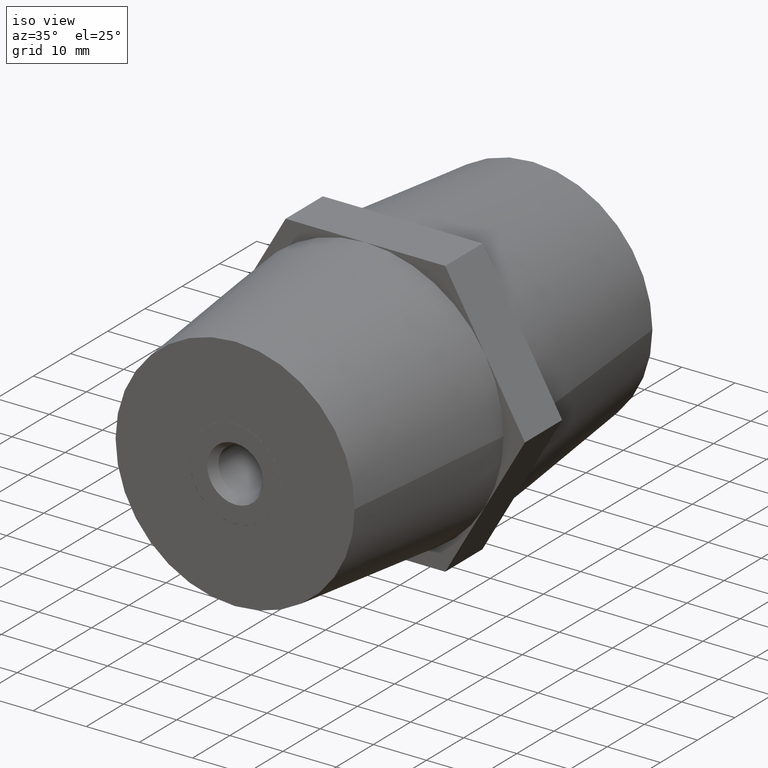
[diagram: clean part render]
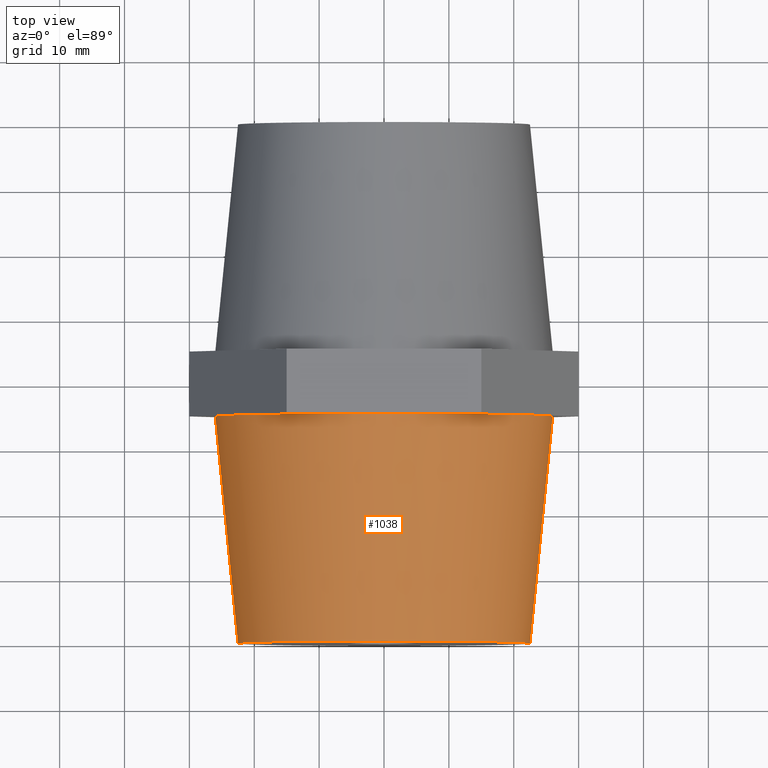
[diagram: tour spotlight — one face highlighted and labeled with its STEP entity id]
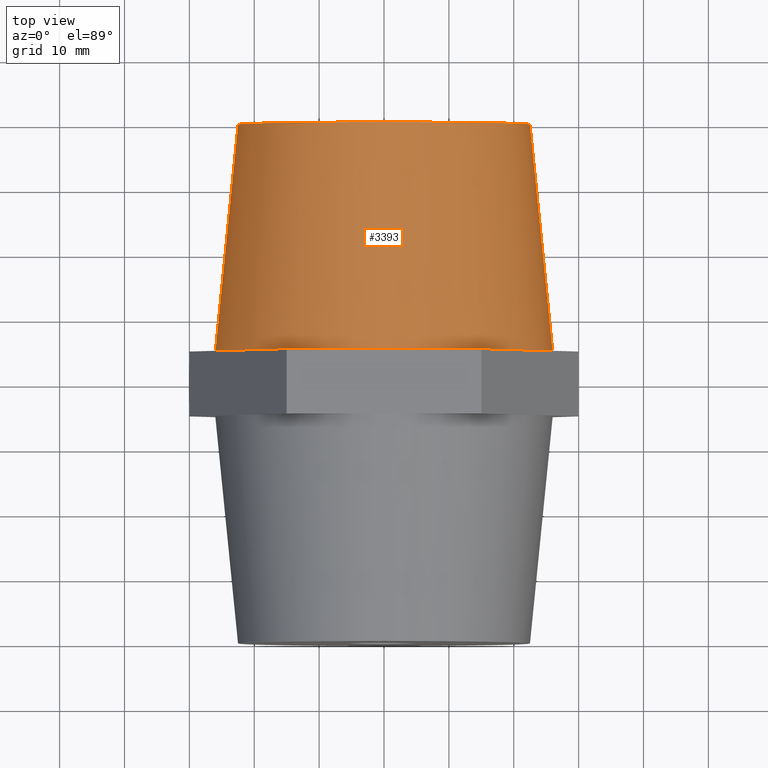
[diagram: tour spotlight — one face highlighted and labeled with its STEP entity id]
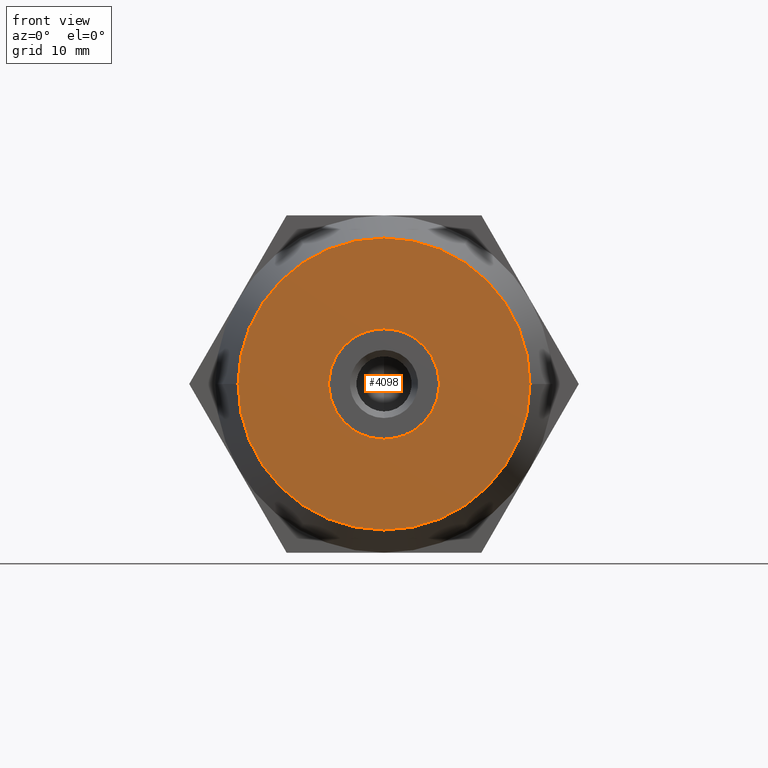
[diagram: tour spotlight — one face highlighted and labeled with its STEP entity id]
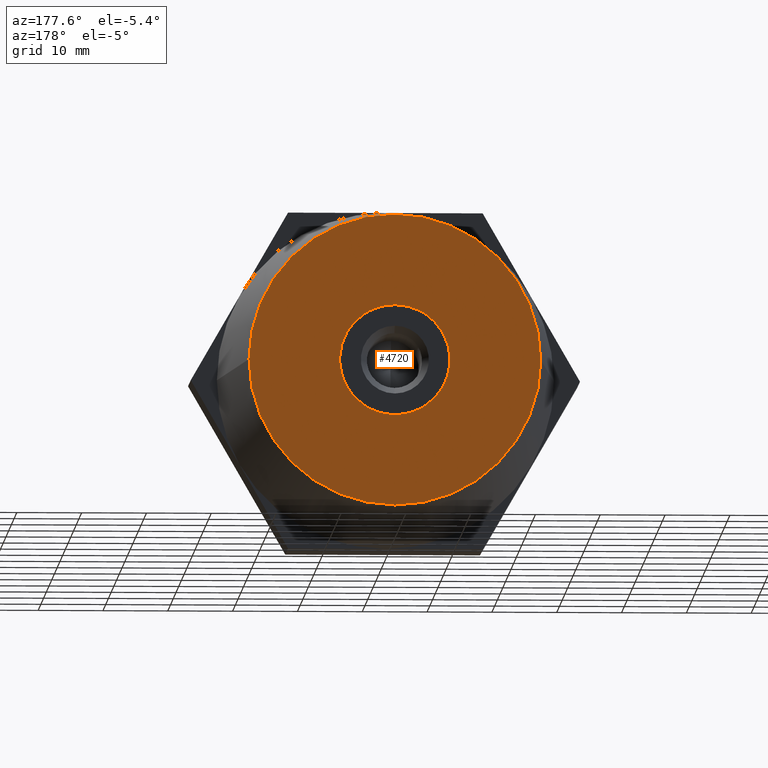
[diagram: tour spotlight — one face highlighted and labeled with its STEP entity id]
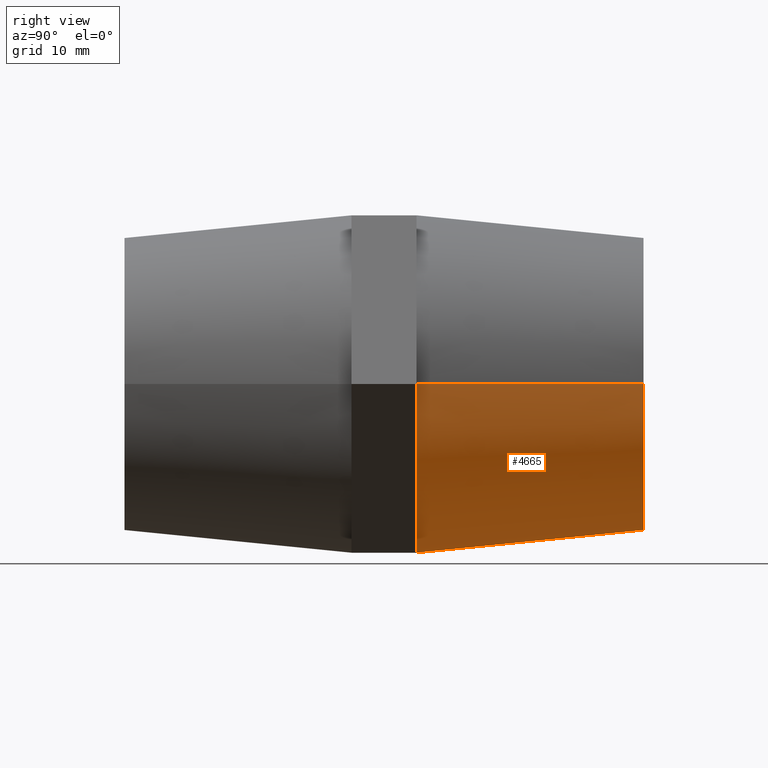
[diagram: tour spotlight — one face highlighted and labeled with its STEP entity id]
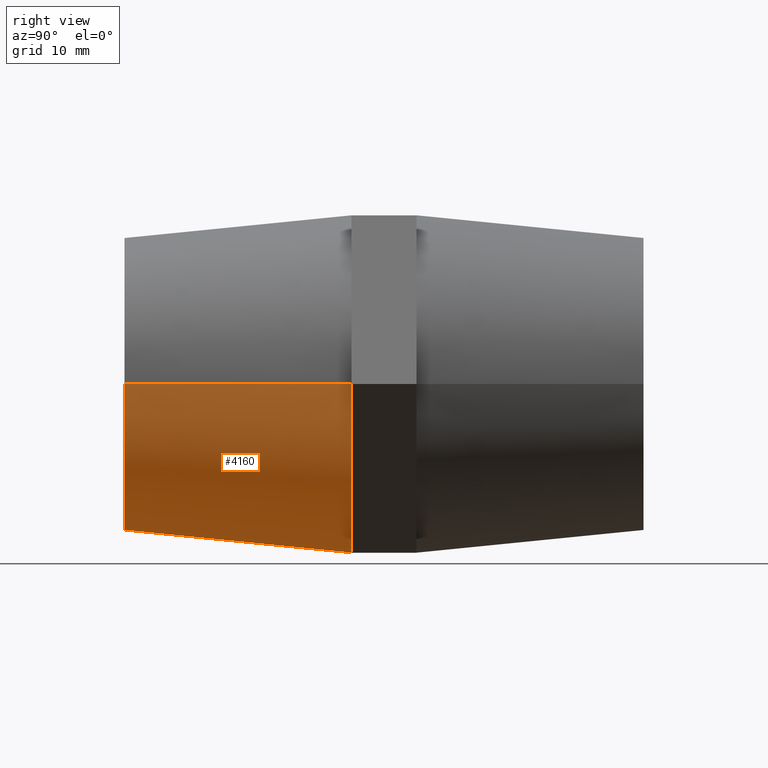
[diagram: tour spotlight — one face highlighted and labeled with its STEP entity id]
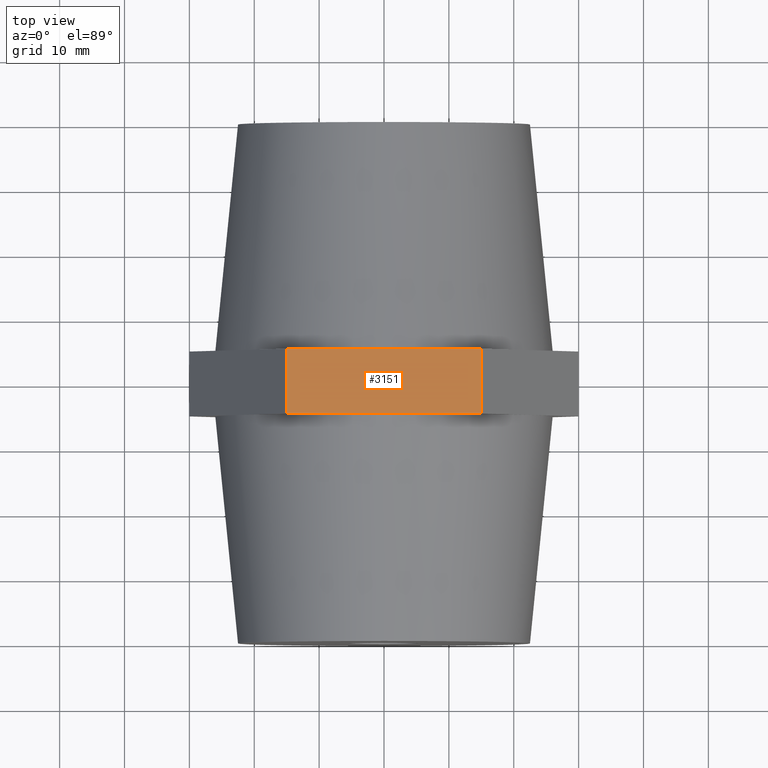
[diagram: tour spotlight — one face highlighted and labeled with its STEP entity id]
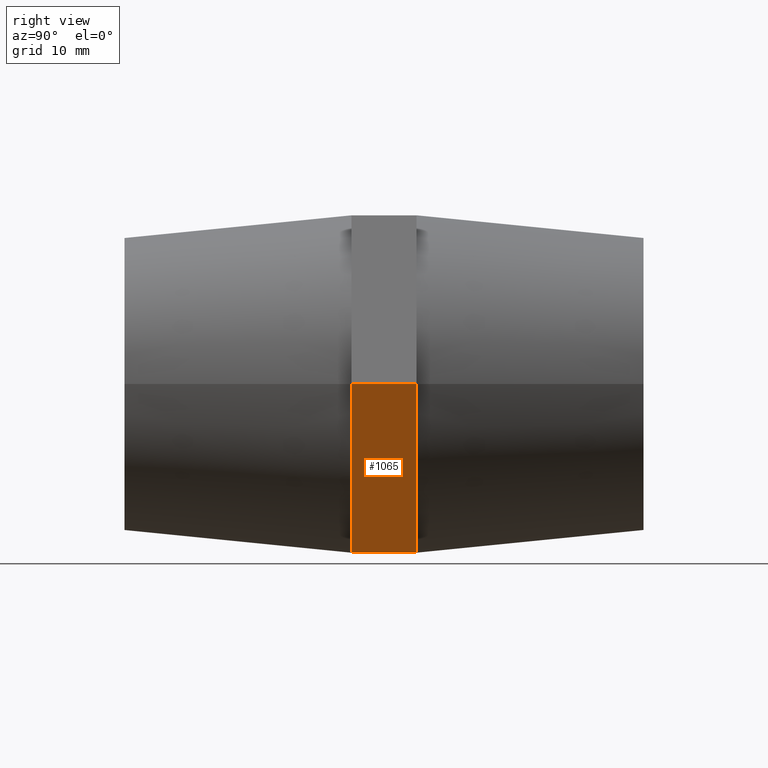
[diagram: tour spotlight — one face highlighted and labeled with its STEP entity id]
A machine part: a face-by-face anatomy tour. The part has 238 B-rep faces; the first image is the clean iso view, then the 8 largest visible faces are spotlighted one at a time (largest first), each with its STEP entity span.

Face 1 — top view, entity #1038. In plain terms, the highlighted conical surface has half-angle 5.711 deg.
Definition (entity closure, byte-faithful):
#4 = AXIS2_PLACEMENT_3D ( 'NONE', #2362, #3571, #741 ) ;
#179 = EDGE_CURVE ( 'NONE', #4708, #3184, #4245, .T. ) ;
#256 = DIRECTION ( 'NONE',  ( 0.0000000000000000000, 0.0000000000000000000, 1.000000000000000000 ) ) ;
#356 = VERTEX_POINT ( 'NONE', #1478 ) ;
#444 = DIRECTION ( 'NONE',  ( -1.224646799147352000E-016, 1.000000000000000000, 0.0000000000000000000 ) ) ;
#481 = ORIENTED_EDGE ( 'NONE', *, *, #719, .T. ) ;
#627 = EDGE_CURVE ( 'NONE', #356, #1499, #1599, .T. ) ;
#667 = CARTESIAN_POINT ( 'NONE',  ( 2.506281398688769900E-015, -5.000000000000000000, 26.00000000000000000 ) ) ;
#712 = DIRECTION ( 'NONE',  ( -1.000000000000000000, -1.334402673828313100E-016, 0.0000000000000000000 ) ) ;
#718 = CARTESIAN_POINT ( 'NONE',  ( -22.51666049839540000, -5.000000000000000000, 13.00000000000000000 ) ) ;
#719 = EDGE_CURVE ( 'NONE', #4363, #3294, #3632, .T. ) ;
#741 = DIRECTION ( 'NONE',  ( 0.0000000000000000000, 0.0000000000000000000, 1.000000000000000000 ) ) ;
#815 = EDGE_CURVE ( 'NONE', #3294, #3184, #4251, .T. ) ;
#816 = VECTOR ( 'NONE', #4163, 1000.000000000000200 ) ;
#840 = CARTESIAN_POINT ( 'NONE',  ( -22.49999999999998900, -40.00000000000000000, 0.0000000000000000000 ) ) ;
#874 = CONICAL_SURFACE ( 'NONE', #1248, 26.00000000000000000, 0.09966865249116252400 ) ;
#1038 = ADVANCED_FACE ( 'NONE', ( #1920 ), #874, .T. ) ;
#1110 = CARTESIAN_POINT ( 'NONE',  ( 5.510910596163089600E-015, -5.000000000000000000, 0.0000000000000000000 ) ) ;
#1248 = AXIS2_PLACEMENT_3D ( 'NONE', #1110, #2321, #712 ) ;
#1257 = CARTESIAN_POINT ( 'NONE',  ( 26.00000000000000700, -4.999999999999996400, 3.184081677783118200E-015 ) ) ;
#1290 = CARTESIAN_POINT ( 'NONE',  ( 9.797174393178830800E-015, -40.00000000000000000, 0.0000000000000000000 ) ) ;
#1293 = EDGE_CURVE ( 'NONE', #4363, #356, #5127, .T. ) ;
#1410 = CIRCLE ( 'NONE', #4, 26.00000000000000000 ) ;
#1411 = CARTESIAN_POINT ( 'NONE',  ( 5.510910596163089600E-015, -5.000000000000000000, 0.0000000000000000000 ) ) ;
#1478 = CARTESIAN_POINT ( 'NONE',  ( -25.99999999999999300, -5.000000000000000000, 0.0000000000000000000 ) ) ;
#1499 = VERTEX_POINT ( 'NONE', #718 ) ;
#1553 = CARTESIAN_POINT ( 'NONE',  ( 22.51666049839544900, -5.000000000000000000, 13.00000000000000000 ) ) ;
#1599 = CIRCLE ( 'NONE', #2530, 26.00000000000000000 ) ;
#1732 = ORIENTED_EDGE ( 'NONE', *, *, #627, .F. ) ;
#1830 = CARTESIAN_POINT ( 'NONE',  ( 22.50000000000001100, -40.00000000000000000, 2.969768487932331700E-015 ) ) ;
#1845 = CARTESIAN_POINT ( 'NONE',  ( -25.99999999999999300, -5.000000000000003600, 0.0000000000000000000 ) ) ;
#1920 = FACE_OUTER_BOUND ( 'NONE', #2488, .T. ) ;
#2018 = ORIENTED_EDGE ( 'NONE', *, *, #3360, .F. ) ;
#2228 = DIRECTION ( 'NONE',  ( -0.09950371902099952600, 0.9950371902099890400, 0.0000000000000000000 ) ) ;
#2321 = DIRECTION ( 'NONE',  ( -1.224646799147352000E-016, 1.000000000000000000, 0.0000000000000000000 ) ) ;
#2362 = CARTESIAN_POINT ( 'NONE',  ( 5.510910596163089600E-015, -5.000000000000000000, 3.184081677783139900E-016 ) ) ;
#2373 = DIRECTION ( 'NONE',  ( 0.0000000000000000000, 1.000000000000000000, 0.0000000000000000000 ) ) ;
#2488 = EDGE_LOOP ( 'NONE', ( #481, #3117, #3424, #3702, #2018, #1732, #4532 ) ) ;
#2490 = DIRECTION ( 'NONE',  ( -1.000000000000000000, 0.0000000000000000000, 0.0000000000000000000 ) ) ;
#2530 = AXIS2_PLACEMENT_3D ( 'NONE', #4732, #2373, #4758 ) ;
#2665 = DIRECTION ( 'NONE',  ( 0.0000000000000000000, 1.000000000000000000, 0.0000000000000000000 ) ) ;
#2744 = CIRCLE ( 'NONE', #2860, 26.00000000000000000 ) ;
#2828 = AXIS2_PLACEMENT_3D ( 'NONE', #3422, #2665, #256 ) ;
#2860 = AXIS2_PLACEMENT_3D ( 'NONE', #1411, #4176, #4960 ) ;
#3117 = ORIENTED_EDGE ( 'NONE', *, *, #815, .T. ) ;
#3184 = VERTEX_POINT ( 'NONE', #4943 ) ;
#3294 = VERTEX_POINT ( 'NONE', #1830 ) ;
#3360 = EDGE_CURVE ( 'NONE', #1499, #3568, #2744, .T. ) ;
#3422 = CARTESIAN_POINT ( 'NONE',  ( 5.510910596163089600E-015, -5.000000000000000000, 3.184081677783139900E-016 ) ) ;
#3424 = ORIENTED_EDGE ( 'NONE', *, *, #179, .F. ) ;
#3568 = VERTEX_POINT ( 'NONE', #667 ) ;
#3571 = DIRECTION ( 'NONE',  ( 0.0000000000000000000, 1.000000000000000000, 0.0000000000000000000 ) ) ;
#3632 = CIRCLE ( 'NONE', #3918, 22.50000000000000000 ) ;
#3687 = EDGE_CURVE ( 'NONE', #3568, #4708, #1410, .T. ) ;
#3702 = ORIENTED_EDGE ( 'NONE', *, *, #3687, .F. ) ;
#3918 = AXIS2_PLACEMENT_3D ( 'NONE', #1290, #444, #2490 ) ;
#3952 = VECTOR ( 'NONE', #2228, 1000.000000000000200 ) ;
#4163 = DIRECTION ( 'NONE',  ( 0.09950371902099927600, 0.9950371902099890400, 1.218569110023245200E-017 ) ) ;
#4176 = DIRECTION ( 'NONE',  ( -1.224646799147352000E-016, 1.000000000000000000, 0.0000000000000000000 ) ) ;
#4245 = CIRCLE ( 'NONE', #2828, 26.00000000000000000 ) ;
#4251 = LINE ( 'NONE', #1257, #816 ) ;
#4363 = VERTEX_POINT ( 'NONE', #840 ) ;
#4532 = ORIENTED_EDGE ( 'NONE', *, *, #1293, .F. ) ;
#4708 = VERTEX_POINT ( 'NONE', #1553 ) ;
#4732 = CARTESIAN_POINT ( 'NONE',  ( 5.510910596163089600E-015, -5.000000000000000000, 3.184081677783139900E-016 ) ) ;
#4758 = DIRECTION ( 'NONE',  ( 0.0000000000000000000, 0.0000000000000000000, 1.000000000000000000 ) ) ;
#4943 = CARTESIAN_POINT ( 'NONE',  ( 26.00000000000000700, -5.000000000000000000, 3.184081677783118200E-015 ) ) ;
#4960 = DIRECTION ( 'NONE',  ( -1.000000000000000000, -1.334402673828313100E-016, 0.0000000000000000000 ) ) ;
#5127 = LINE ( 'NONE', #1845, #3952 ) ;

Face 2 — top view, entity #3393. In plain terms, the highlighted conical surface has half-angle 5.711 deg.
Definition (entity closure, byte-faithful):
#192 = CIRCLE ( 'NONE', #1371, 22.50000000000000000 ) ;
#376 = ORIENTED_EDGE ( 'NONE', *, *, #4683, .T. ) ;
#431 = AXIS2_PLACEMENT_3D ( 'NONE', #4536, #596, #2574 ) ;
#494 = DIRECTION ( 'NONE',  ( -1.224646799147352000E-016, 1.000000000000000000, 0.0000000000000000000 ) ) ;
#589 = FACE_OUTER_BOUND ( 'NONE', #1758, .T. ) ;
#596 = DIRECTION ( 'NONE',  ( 1.224646799147352000E-016, -1.000000000000000000, 0.0000000000000000000 ) ) ;
#893 = CARTESIAN_POINT ( 'NONE',  ( 4.286263797015734900E-015, 5.000000000000000000, 0.0000000000000000000 ) ) ;
#944 = DIRECTION ( 'NONE',  ( -1.000000000000000000, -1.334402673828313100E-016, 0.0000000000000000000 ) ) ;
#977 = VERTEX_POINT ( 'NONE', #3849 ) ;
#1111 = DIRECTION ( 'NONE',  ( -1.000000000000000000, -1.334402673828313100E-016, 0.0000000000000000000 ) ) ;
#1317 = ORIENTED_EDGE ( 'NONE', *, *, #2197, .T. ) ;
#1351 = CARTESIAN_POINT ( 'NONE',  ( 26.00000000000002100, 5.000000000000000000, 0.0000000000000000000 ) ) ;
#1371 = AXIS2_PLACEMENT_3D ( 'NONE', #4227, #4368, #5072 ) ;
#1475 = DIRECTION ( 'NONE',  ( 0.09950371902099942900, -0.9950371902099890400, 0.0000000000000000000 ) ) ;
#1516 = CARTESIAN_POINT ( 'NONE',  ( 4.286263797015734900E-015, 5.000000000000000000, 0.0000000000000000000 ) ) ;
#1565 = EDGE_CURVE ( 'NONE', #977, #3859, #192, .T. ) ;
#1598 = AXIS2_PLACEMENT_3D ( 'NONE', #3887, #4671, #2322 ) ;
#1758 = EDGE_LOOP ( 'NONE', ( #4705, #4872, #1317, #2861, #376, #4451, #2034 ) ) ;
#1766 = VECTOR ( 'NONE', #1475, 1000.000000000000200 ) ;
#1968 = DIRECTION ( 'NONE',  ( -0.09950371902099919300, -0.9950371902099890400, 1.218569110023244100E-017 ) ) ;
#2034 = ORIENTED_EDGE ( 'NONE', *, *, #2095, .F. ) ;
#2095 = EDGE_CURVE ( 'NONE', #3859, #3464, #2950, .T. ) ;
#2197 = EDGE_CURVE ( 'NONE', #3556, #3009, #5115, .T. ) ;
#2270 = AXIS2_PLACEMENT_3D ( 'NONE', #893, #2958, #944 ) ;
#2322 = DIRECTION ( 'NONE',  ( -1.000000000000000000, -1.334402673828313100E-016, 0.0000000000000000000 ) ) ;
#2475 = VECTOR ( 'NONE', #1968, 1000.000000000000200 ) ;
#2536 = CARTESIAN_POINT ( 'NONE',  ( 4.286263797015734900E-015, 5.000000000000000000, 0.0000000000000000000 ) ) ;
#2574 = DIRECTION ( 'NONE',  ( 1.000000000000000000, 0.0000000000000000000, 0.0000000000000000000 ) ) ;
#2797 = CIRCLE ( 'NONE', #2270, 26.00000000000000000 ) ;
#2809 = CARTESIAN_POINT ( 'NONE',  ( -22.51666049839540000, 5.000000000000000000, 13.00000000000000000 ) ) ;
#2861 = ORIENTED_EDGE ( 'NONE', *, *, #4724, .T. ) ;
#2880 = AXIS2_PLACEMENT_3D ( 'NONE', #2536, #494, #4866 ) ;
#2950 = LINE ( 'NONE', #4288, #1766 ) ;
#2958 = DIRECTION ( 'NONE',  ( -1.224646799147352000E-016, 1.000000000000000000, 0.0000000000000000000 ) ) ;
#2988 = VERTEX_POINT ( 'NONE', #5146 ) ;
#3009 = VERTEX_POINT ( 'NONE', #2809 ) ;
#3393 = ADVANCED_FACE ( 'NONE', ( #589 ), #3457, .T. ) ;
#3447 = AXIS2_PLACEMENT_3D ( 'NONE', #1516, #4308, #1111 ) ;
#3457 = CONICAL_SURFACE ( 'NONE', #431, 22.50000000000000000, 0.09966865249116244100 ) ;
#3464 = VERTEX_POINT ( 'NONE', #1351 ) ;
#3556 = VERTEX_POINT ( 'NONE', #4718 ) ;
#3796 = EDGE_CURVE ( 'NONE', #977, #3556, #4810, .T. ) ;
#3849 = CARTESIAN_POINT ( 'NONE',  ( -22.50000000000000000, 40.00000000000000000, 2.969768487932332100E-015 ) ) ;
#3859 = VERTEX_POINT ( 'NONE', #4440 ) ;
#3887 = CARTESIAN_POINT ( 'NONE',  ( 4.286263797015734900E-015, 5.000000000000000000, 0.0000000000000000000 ) ) ;
#3934 = CARTESIAN_POINT ( 'NONE',  ( -22.50000000000000000, 40.00000000000000000, 2.755455298081544800E-015 ) ) ;
#3941 = CARTESIAN_POINT ( 'NONE',  ( -3.004629197474319600E-015, 5.000000000000000000, 26.00000000000000000 ) ) ;
#3957 = CIRCLE ( 'NONE', #1598, 26.00000000000000000 ) ;
#3966 = EDGE_CURVE ( 'NONE', #2988, #3464, #2797, .T. ) ;
#4227 = CARTESIAN_POINT ( 'NONE',  ( -3.374459510989179900E-031, 40.00000000000000000, 0.0000000000000000000 ) ) ;
#4288 = CARTESIAN_POINT ( 'NONE',  ( 22.50000000000000000, 40.00000000000000000, 0.0000000000000000000 ) ) ;
#4308 = DIRECTION ( 'NONE',  ( -1.224646799147352000E-016, 1.000000000000000000, 0.0000000000000000000 ) ) ;
#4368 = DIRECTION ( 'NONE',  ( -1.224646799147352000E-016, 1.000000000000000000, 0.0000000000000000000 ) ) ;
#4440 = CARTESIAN_POINT ( 'NONE',  ( 22.50000000000000000, 40.00000000000000000, 0.0000000000000000000 ) ) ;
#4451 = ORIENTED_EDGE ( 'NONE', *, *, #3966, .T. ) ;
#4494 = CIRCLE ( 'NONE', #3447, 26.00000000000000000 ) ;
#4536 = CARTESIAN_POINT ( 'NONE',  ( -3.374459510989179900E-031, 40.00000000000000000, 0.0000000000000000000 ) ) ;
#4671 = DIRECTION ( 'NONE',  ( -1.224646799147352000E-016, 1.000000000000000000, 0.0000000000000000000 ) ) ;
#4674 = VERTEX_POINT ( 'NONE', #3941 ) ;
#4683 = EDGE_CURVE ( 'NONE', #4674, #2988, #4494, .T. ) ;
#4705 = ORIENTED_EDGE ( 'NONE', *, *, #1565, .F. ) ;
#4718 = CARTESIAN_POINT ( 'NONE',  ( -26.00000000000001100, 5.000000000000000000, 3.184081677783120200E-015 ) ) ;
#4724 = EDGE_CURVE ( 'NONE', #3009, #4674, #3957, .T. ) ;
#4810 = LINE ( 'NONE', #3934, #2475 ) ;
#4866 = DIRECTION ( 'NONE',  ( -1.000000000000000000, -1.334402673828313100E-016, 0.0000000000000000000 ) ) ;
#4872 = ORIENTED_EDGE ( 'NONE', *, *, #3796, .T. ) ;
#5072 = DIRECTION ( 'NONE',  ( -1.000000000000000000, 0.0000000000000000000, 0.0000000000000000000 ) ) ;
#5115 = CIRCLE ( 'NONE', #2880, 26.00000000000000000 ) ;
#5146 = CARTESIAN_POINT ( 'NONE',  ( 22.51666049839540000, 5.000000000000000000, 13.00000000000000000 ) ) ;

Face 3 — front view, entity #4098. In plain terms, the highlighted planar face has unit normal (0, -1, 0).
Definition (entity closure, byte-faithful):
#13 = DIRECTION ( 'NONE',  ( 1.000000000000000000, 0.0000000000000000000, -1.776356839400250500E-015 ) ) ;
#50 = CARTESIAN_POINT ( 'NONE',  ( -12.62500000000000000, -40.00000000000000000, -17.10400172474265200 ) ) ;
#198 = CARTESIAN_POINT ( 'NONE',  ( -8.500000000000000000, -40.00000000000000000, -0.4124318125462395100 ) ) ;
#201 = FACE_OUTER_BOUND ( 'NONE', #2760, .T. ) ;
#202 = DIRECTION ( 'NONE',  ( -1.224646799147352000E-016, 1.000000000000000000, -0.0000000000000000000 ) ) ;
#209 = LINE ( 'NONE', #357, #4327 ) ;
#210 = EDGE_CURVE ( 'NONE', #3218, #1994, #2787, .T. ) ;
#216 = CARTESIAN_POINT ( 'NONE',  ( -22.50000000000000000, -40.00000000000000000, 0.0000000000000000000 ) ) ;
#221 = VERTEX_POINT ( 'NONE', #2750 ) ;
#268 = DIRECTION ( 'NONE',  ( -1.000000000000000000, 0.0000000000000000000, 0.0000000000000000000 ) ) ;
#286 = EDGE_CURVE ( 'NONE', #3294, #4363, #3562, .T. ) ;
#297 = AXIS2_PLACEMENT_3D ( 'NONE', #3047, #631, #1408 ) ;
#317 = DIRECTION ( 'NONE',  ( -1.224646799147352000E-016, 1.000000000000000000, -0.0000000000000000000 ) ) ;
#336 = FACE_BOUND ( 'NONE', #2461, .T. ) ;
#339 = CARTESIAN_POINT ( 'NONE',  ( 8.500000000000000000, -40.00000000000000000, 0.4124318125463410400 ) ) ;
#357 = CARTESIAN_POINT ( 'NONE',  ( -12.62500000000000000, -40.00000000000000000, 17.10400172474265200 ) ) ;
#365 = ORIENTED_EDGE ( 'NONE', *, *, #2943, .T. ) ;
#444 = DIRECTION ( 'NONE',  ( -1.224646799147352000E-016, 1.000000000000000000, 0.0000000000000000000 ) ) ;
#459 = AXIS2_PLACEMENT_3D ( 'NONE', #4215, #2320, #727 ) ;
#504 = ORIENTED_EDGE ( 'NONE', *, *, #1398, .T. ) ;
#595 = LINE ( 'NONE', #2041, #4946 ) ;
#631 = DIRECTION ( 'NONE',  ( -1.224646799147352000E-016, 1.000000000000000000, -0.0000000000000000000 ) ) ;
#719 = EDGE_CURVE ( 'NONE', #4363, #3294, #3632, .T. ) ;
#720 = DIRECTION ( 'NONE',  ( 1.000000000000000000, 0.0000000000000000000, 0.0000000000000000000 ) ) ;
#721 = ORIENTED_EDGE ( 'NONE', *, *, #286, .F. ) ;
#727 = DIRECTION ( 'NONE',  ( 1.000000000000000000, 0.0000000000000000000, 1.776356839400250500E-015 ) ) ;
#751 = ORIENTED_EDGE ( 'NONE', *, *, #210, .T. ) ;
#757 = EDGE_CURVE ( 'NONE', #2198, #3218, #768, .T. ) ;
#768 = LINE ( 'NONE', #4405, #1012 ) ;
#826 = CARTESIAN_POINT ( 'NONE',  ( 4.607176426994010800, -40.00000000000000000, 7.155000025894540100 ) ) ;
#840 = CARTESIAN_POINT ( 'NONE',  ( -22.49999999999998900, -40.00000000000000000, 0.0000000000000000000 ) ) ;
#935 = CARTESIAN_POINT ( 'NONE',  ( 1.042174426074395900E-015, -40.00000000000000000, 0.0000000000000000000 ) ) ;
#937 = CARTESIAN_POINT ( 'NONE',  ( -4.607176426993900600, -40.00000000000000000, -7.155000025894610300 ) ) ;
#1012 = VECTOR ( 'NONE', #4043, 1000.000000000000000 ) ;
#1042 = PLANE ( 'NONE',  #4604 ) ;
#1056 = DIRECTION ( 'NONE',  ( 1.000000000000000000, 1.224646799147352000E-016, 0.0000000000000000000 ) ) ;
#1165 = DIRECTION ( 'NONE',  ( 1.000000000000000000, 0.0000000000000000000, 0.0000000000000000000 ) ) ;
#1288 = ORIENTED_EDGE ( 'NONE', *, *, #719, .F. ) ;
#1290 = CARTESIAN_POINT ( 'NONE',  ( 9.797174393178830800E-015, -40.00000000000000000, 0.0000000000000000000 ) ) ;
#1398 = EDGE_CURVE ( 'NONE', #3282, #4760, #1707, .T. ) ;
#1404 = DIRECTION ( 'NONE',  ( 1.224646799147352000E-016, -1.000000000000000000, 0.0000000000000000000 ) ) ;
#1408 = DIRECTION ( 'NONE',  ( 1.000000000000000000, 0.0000000000000000000, 1.776356839400250500E-015 ) ) ;
#1426 = ORIENTED_EDGE ( 'NONE', *, *, #3226, .T. ) ;
#1449 = ORIENTED_EDGE ( 'NONE', *, *, #1580, .T. ) ;
#1462 = LINE ( 'NONE', #4748, #4680 ) ;
#1474 = VECTOR ( 'NONE', #2112, 1000.000000000000000 ) ;
#1568 = ORIENTED_EDGE ( 'NONE', *, *, #757, .T. ) ;
#1580 = EDGE_CURVE ( 'NONE', #4760, #4702, #1462, .T. ) ;
#1613 = ORIENTED_EDGE ( 'NONE', *, *, #2345, .T. ) ;
#1619 = ORIENTED_EDGE ( 'NONE', *, *, #4387, .T. ) ;
#1707 = CIRCLE ( 'NONE', #297, 8.509999999999999800 ) ;
#1830 = CARTESIAN_POINT ( 'NONE',  ( 22.50000000000001100, -40.00000000000000000, 2.969768487932331700E-015 ) ) ;
#1948 = CARTESIAN_POINT ( 'NONE',  ( 1.042174426074395900E-015, -40.00000000000000000, 0.0000000000000000000 ) ) ;
#1977 = CARTESIAN_POINT ( 'NONE',  ( -3.892823573006010100, -40.00000000000000000, 7.567431838440890100 ) ) ;
#1994 = VERTEX_POINT ( 'NONE', #198 ) ;
#2041 = CARTESIAN_POINT ( 'NONE',  ( 8.500000000000000000, -40.00000000000000000, 1.095805942608280000E-014 ) ) ;
#2054 = AXIS2_PLACEMENT_3D ( 'NONE', #3959, #2417, #13 ) ;
#2072 = EDGE_CURVE ( 'NONE', #4702, #4443, #2457, .T. ) ;
#2112 = DIRECTION ( 'NONE',  ( -0.8660254037844387100, -1.060575238724905700E-016, -0.4999999999999998900 ) ) ;
#2198 = VERTEX_POINT ( 'NONE', #4937 ) ;
#2201 = ORIENTED_EDGE ( 'NONE', *, *, #4980, .T. ) ;
#2221 = CARTESIAN_POINT ( 'NONE',  ( 1.042174426074395900E-015, -40.00000000000000000, 0.0000000000000000000 ) ) ;
#2277 = CARTESIAN_POINT ( 'NONE',  ( 9.797174393178830800E-015, -40.00000000000000000, 0.0000000000000000000 ) ) ;
#2320 = DIRECTION ( 'NONE',  ( -1.224646799147352000E-016, 1.000000000000000000, -0.0000000000000000000 ) ) ;
#2345 = EDGE_CURVE ( 'NONE', #3714, #2825, #595, .T. ) ;
#2417 = DIRECTION ( 'NONE',  ( -1.224646799147352000E-016, 1.000000000000000000, -0.0000000000000000000 ) ) ;
#2434 = CARTESIAN_POINT ( 'NONE',  ( 1.042174426074395900E-015, -40.00000000000000000, 0.0000000000000000000 ) ) ;
#2457 = CIRCLE ( 'NONE', #459, 8.509999999999999800 ) ;
#2461 = EDGE_LOOP ( 'NONE', ( #4337, #365, #1613, #2201, #1619, #2484, #1568, #751, #1426, #504, #1449, #3650, #2644 ) ) ;
#2484 = ORIENTED_EDGE ( 'NONE', *, *, #4055, .T. ) ;
#2490 = DIRECTION ( 'NONE',  ( -1.000000000000000000, 0.0000000000000000000, 0.0000000000000000000 ) ) ;
#2561 = DIRECTION ( 'NONE',  ( 0.0000000000000000000, 0.0000000000000000000, 1.000000000000000000 ) ) ;
#2644 = ORIENTED_EDGE ( 'NONE', *, *, #4815, .T. ) ;
#2678 = LINE ( 'NONE', #3295, #2913 ) ;
#2717 = DIRECTION ( 'NONE',  ( 0.8660254037844387100, 1.060575238724905700E-016, 0.4999999999999998900 ) ) ;
#2750 = CARTESIAN_POINT ( 'NONE',  ( 3.892823573006069600, -40.00000000000000000, -7.567431838440869600 ) ) ;
#2760 = EDGE_LOOP ( 'NONE', ( #1288, #721 ) ) ;
#2787 = CIRCLE ( 'NONE', #4759, 8.509999999999999800 ) ;
#2825 = VERTEX_POINT ( 'NONE', #3484 ) ;
#2913 = VECTOR ( 'NONE', #2561, 1000.000000000000000 ) ;
#2927 = AXIS2_PLACEMENT_3D ( 'NONE', #935, #3348, #4505 ) ;
#2943 = EDGE_CURVE ( 'NONE', #3970, #3714, #5014, .T. ) ;
#3026 = DIRECTION ( 'NONE',  ( 1.000000000000000000, 0.0000000000000000000, 0.0000000000000000000 ) ) ;
#3047 = CARTESIAN_POINT ( 'NONE',  ( 1.042174426074395900E-015, -40.00000000000000000, 0.0000000000000000000 ) ) ;
#3090 = AXIS2_PLACEMENT_3D ( 'NONE', #2277, #5081, #268 ) ;
#3098 = AXIS2_PLACEMENT_3D ( 'NONE', #2434, #4401, #1165 ) ;
#3167 = DIRECTION ( 'NONE',  ( 0.8660254037844387100, 1.060575238724905700E-016, -0.4999999999999998900 ) ) ;
#3174 = CARTESIAN_POINT ( 'NONE',  ( -4.607176426993989400, -40.00000000000000000, 7.155000025894559600 ) ) ;
#3218 = VERTEX_POINT ( 'NONE', #937 ) ;
#3226 = EDGE_CURVE ( 'NONE', #1994, #3282, #2678, .T. ) ;
#3261 = LINE ( 'NONE', #50, #1474 ) ;
#3282 = VERTEX_POINT ( 'NONE', #4161 ) ;
#3294 = VERTEX_POINT ( 'NONE', #1830 ) ;
#3295 = CARTESIAN_POINT ( 'NONE',  ( -8.500000000000000000, -40.00000000000000000, 0.0000000000000000000 ) ) ;
#3348 = DIRECTION ( 'NONE',  ( -1.224646799147352000E-016, 1.000000000000000000, -0.0000000000000000000 ) ) ;
#3484 = CARTESIAN_POINT ( 'NONE',  ( 8.500000000000000000, -40.00000000000000000, -0.4124318125463780100 ) ) ;
#3519 = CIRCLE ( 'NONE', #2927, 8.509999999999999800 ) ;
#3561 = CARTESIAN_POINT ( 'NONE',  ( 3.892823573005975000, -40.00000000000000000, 7.567431838440909600 ) ) ;
#3562 = CIRCLE ( 'NONE', #3090, 22.50000000000000000 ) ;
#3572 = CIRCLE ( 'NONE', #3098, 8.509999999999999800 ) ;
#3605 = EDGE_CURVE ( 'NONE', #4827, #3970, #209, .T. ) ;
#3632 = CIRCLE ( 'NONE', #3918, 22.50000000000000000 ) ;
#3650 = ORIENTED_EDGE ( 'NONE', *, *, #2072, .T. ) ;
#3714 = VERTEX_POINT ( 'NONE', #339 ) ;
#3918 = AXIS2_PLACEMENT_3D ( 'NONE', #1290, #444, #2490 ) ;
#3959 = CARTESIAN_POINT ( 'NONE',  ( 1.042174426074395900E-015, -40.00000000000000000, 0.0000000000000000000 ) ) ;
#3970 = VERTEX_POINT ( 'NONE', #826 ) ;
#4000 = CARTESIAN_POINT ( 'NONE',  ( -3.851859888774471700E-031, -40.00000000000000000, 8.509999999999999800 ) ) ;
#4043 = DIRECTION ( 'NONE',  ( -0.8660254037844387100, -1.060575238724905700E-016, 0.4999999999999998900 ) ) ;
#4055 = EDGE_CURVE ( 'NONE', #221, #2198, #4684, .T. ) ;
#4098 = ADVANCED_FACE ( 'NONE', ( #201, #336 ), #1042, .T. ) ;
#4161 = CARTESIAN_POINT ( 'NONE',  ( -8.500000000000000000, -40.00000000000000000, 0.4124318125462395100 ) ) ;
#4215 = CARTESIAN_POINT ( 'NONE',  ( 1.042174426074395900E-015, -40.00000000000000000, 0.0000000000000000000 ) ) ;
#4327 = VECTOR ( 'NONE', #3167, 1000.000000000000000 ) ;
#4337 = ORIENTED_EDGE ( 'NONE', *, *, #3605, .T. ) ;
#4363 = VERTEX_POINT ( 'NONE', #840 ) ;
#4387 = EDGE_CURVE ( 'NONE', #4652, #221, #3261, .T. ) ;
#4401 = DIRECTION ( 'NONE',  ( -1.224646799147352000E-016, 1.000000000000000000, -0.0000000000000000000 ) ) ;
#4405 = CARTESIAN_POINT ( 'NONE',  ( -21.12500000000000000, -40.00000000000000000, 2.381569860407195100 ) ) ;
#4443 = VERTEX_POINT ( 'NONE', #4000 ) ;
#4505 = DIRECTION ( 'NONE',  ( 1.000000000000000000, 0.0000000000000000000, 0.0000000000000000000 ) ) ;
#4604 = AXIS2_PLACEMENT_3D ( 'NONE', #216, #1404, #1056 ) ;
#4652 = VERTEX_POINT ( 'NONE', #5131 ) ;
#4680 = VECTOR ( 'NONE', #2717, 1000.000000000000000 ) ;
#4684 = CIRCLE ( 'NONE', #4891, 8.509999999999999800 ) ;
#4702 = VERTEX_POINT ( 'NONE', #1977 ) ;
#4748 = CARTESIAN_POINT ( 'NONE',  ( -21.12500000000000000, -40.00000000000000000, -2.381569860407209700 ) ) ;
#4759 = AXIS2_PLACEMENT_3D ( 'NONE', #1948, #317, #720 ) ;
#4760 = VERTEX_POINT ( 'NONE', #3174 ) ;
#4788 = DIRECTION ( 'NONE',  ( 3.534857879381550100E-016, 4.328952387425414700E-032, -1.000000000000000000 ) ) ;
#4815 = EDGE_CURVE ( 'NONE', #4443, #4827, #3572, .T. ) ;
#4827 = VERTEX_POINT ( 'NONE', #3561 ) ;
#4891 = AXIS2_PLACEMENT_3D ( 'NONE', #2221, #202, #3026 ) ;
#4937 = CARTESIAN_POINT ( 'NONE',  ( -3.892823573006094900, -40.00000000000000000, -7.567431838440849200 ) ) ;
#4946 = VECTOR ( 'NONE', #4788, 1000.000000000000000 ) ;
#4980 = EDGE_CURVE ( 'NONE', #2825, #4652, #3519, .T. ) ;
#5014 = CIRCLE ( 'NONE', #2054, 8.509999999999999800 ) ;
#5081 = DIRECTION ( 'NONE',  ( -1.224646799147352000E-016, 1.000000000000000000, 0.0000000000000000000 ) ) ;
#5131 = CARTESIAN_POINT ( 'NONE',  ( 4.607176426993929900, -40.00000000000000000, -7.155000025894589800 ) ) ;

Face 4 — auxiliary view, entity #4720. In plain terms, the highlighted planar face has unit normal (-0, 1, 0).
Definition (entity closure, byte-faithful):
#135 = DIRECTION ( 'NONE',  ( 1.224646799147352000E-016, -1.000000000000000000, -0.0000000000000000000 ) ) ;
#178 = DIRECTION ( 'NONE',  ( -1.000000000000000000, 0.0000000000000000000, -1.776356839400250500E-015 ) ) ;
#192 = CIRCLE ( 'NONE', #1371, 22.50000000000000000 ) ;
#227 = AXIS2_PLACEMENT_3D ( 'NONE', #1479, #2341, #1872 ) ;
#288 = DIRECTION ( 'NONE',  ( -1.000000000000000000, 0.0000000000000000000, -8.881784197001252300E-016 ) ) ;
#307 = VERTEX_POINT ( 'NONE', #3449 ) ;
#318 = EDGE_CURVE ( 'NONE', #307, #907, #1595, .T. ) ;
#372 = CARTESIAN_POINT ( 'NONE',  ( 8.500000000000000000, 40.00000000000000000, -0.4124318125461605100 ) ) ;
#405 = CIRCLE ( 'NONE', #638, 8.509999999999999800 ) ;
#423 = EDGE_CURVE ( 'NONE', #3340, #3919, #2350, .T. ) ;
#433 = DIRECTION ( 'NONE',  ( -1.000000000000000000, 0.0000000000000000000, 0.0000000000000000000 ) ) ;
#464 = CARTESIAN_POINT ( 'NONE',  ( -1.042174426074395900E-015, 40.00000000000000000, 0.0000000000000000000 ) ) ;
#553 = CARTESIAN_POINT ( 'NONE',  ( -1.042174426074395900E-015, 40.00000000000000000, 0.0000000000000000000 ) ) ;
#614 = VERTEX_POINT ( 'NONE', #3551 ) ;
#638 = AXIS2_PLACEMENT_3D ( 'NONE', #2651, #3037, #178 ) ;
#651 = VECTOR ( 'NONE', #2211, 1000.000000000000000 ) ;
#710 = VECTOR ( 'NONE', #3621, 1000.000000000000000 ) ;
#731 = ORIENTED_EDGE ( 'NONE', *, *, #2083, .T. ) ;
#742 = EDGE_CURVE ( 'NONE', #907, #2939, #1539, .T. ) ;
#748 = DIRECTION ( 'NONE',  ( -1.224646799147352000E-016, 1.000000000000000000, 0.0000000000000000000 ) ) ;
#792 = ORIENTED_EDGE ( 'NONE', *, *, #1255, .T. ) ;
#794 = AXIS2_PLACEMENT_3D ( 'NONE', #1674, #2817, #433 ) ;
#825 = LINE ( 'NONE', #2377, #2671 ) ;
#830 = AXIS2_PLACEMENT_3D ( 'NONE', #1519, #3502, #1912 ) ;
#872 = CARTESIAN_POINT ( 'NONE',  ( -12.62500000000000000, 40.00000000000000000, 17.10400172474265200 ) ) ;
#907 = VERTEX_POINT ( 'NONE', #4907 ) ;
#977 = VERTEX_POINT ( 'NONE', #3849 ) ;
#1029 = CARTESIAN_POINT ( 'NONE',  ( 4.607176426993840200, 40.00000000000000000, 7.155000025894650200 ) ) ;
#1090 = CIRCLE ( 'NONE', #227, 8.509999999999999800 ) ;
#1100 = VERTEX_POINT ( 'NONE', #3496 ) ;
#1190 = ORIENTED_EDGE ( 'NONE', *, *, #2904, .T. ) ;
#1201 = VECTOR ( 'NONE', #2646, 1000.000000000000000 ) ;
#1211 = AXIS2_PLACEMENT_3D ( 'NONE', #3516, #748, #5063 ) ;
#1250 = ORIENTED_EDGE ( 'NONE', *, *, #3289, .T. ) ;
#1255 = EDGE_CURVE ( 'NONE', #2939, #3747, #3445, .T. ) ;
#1269 = AXIS2_PLACEMENT_3D ( 'NONE', #4634, #2685, #288 ) ;
#1323 = VECTOR ( 'NONE', #5145, 1000.000000000000000 ) ;
#1369 = ORIENTED_EDGE ( 'NONE', *, *, #742, .T. ) ;
#1371 = AXIS2_PLACEMENT_3D ( 'NONE', #4227, #4368, #5072 ) ;
#1387 = CIRCLE ( 'NONE', #1269, 8.509999999999999800 ) ;
#1479 = CARTESIAN_POINT ( 'NONE',  ( -1.042174426074395900E-015, 40.00000000000000000, 0.0000000000000000000 ) ) ;
#1519 = CARTESIAN_POINT ( 'NONE',  ( -1.042174426074395900E-015, 40.00000000000000000, 0.0000000000000000000 ) ) ;
#1538 = CARTESIAN_POINT ( 'NONE',  ( -21.12500000000000000, 40.00000000000000000, -2.381569860407205300 ) ) ;
#1539 = CIRCLE ( 'NONE', #3739, 8.509999999999999800 ) ;
#1557 = CIRCLE ( 'NONE', #794, 22.50000000000000000 ) ;
#1565 = EDGE_CURVE ( 'NONE', #977, #3859, #192, .T. ) ;
#1595 = LINE ( 'NONE', #1538, #2528 ) ;
#1674 = CARTESIAN_POINT ( 'NONE',  ( -3.374459510989179900E-031, 40.00000000000000000, 0.0000000000000000000 ) ) ;
#1703 = ORIENTED_EDGE ( 'NONE', *, *, #423, .T. ) ;
#1872 = DIRECTION ( 'NONE',  ( -1.000000000000000000, 0.0000000000000000000, 0.0000000000000000000 ) ) ;
#1912 = DIRECTION ( 'NONE',  ( -1.000000000000000000, 0.0000000000000000000, -8.881784197001252300E-016 ) ) ;
#2076 = DIRECTION ( 'NONE',  ( 1.224646799147352000E-016, -1.000000000000000000, -0.0000000000000000000 ) ) ;
#2081 = CARTESIAN_POINT ( 'NONE',  ( -3.892823573006110000, 40.00000000000000000, -7.567431838440839400 ) ) ;
#2083 = EDGE_CURVE ( 'NONE', #614, #3666, #1387, .T. ) ;
#2179 = CIRCLE ( 'NONE', #3999, 8.509999999999999800 ) ;
#2190 = CARTESIAN_POINT ( 'NONE',  ( -4.607176426993890000, 40.00000000000000000, -7.155000025894610300 ) ) ;
#2211 = DIRECTION ( 'NONE',  ( 0.8660254037844387100, 1.060575238724905700E-016, 0.4999999999999998900 ) ) ;
#2232 = FACE_OUTER_BOUND ( 'NONE', #3671, .T. ) ;
#2233 = CARTESIAN_POINT ( 'NONE',  ( -12.62500000000000000, 40.00000000000000000, -17.10400172474265200 ) ) ;
#2294 = EDGE_CURVE ( 'NONE', #3859, #977, #1557, .T. ) ;
#2341 = DIRECTION ( 'NONE',  ( 1.224646799147352000E-016, -1.000000000000000000, -0.0000000000000000000 ) ) ;
#2348 = CARTESIAN_POINT ( 'NONE',  ( -8.500000000000000000, 40.00000000000000000, -0.4124318125461904900 ) ) ;
#2350 = LINE ( 'NONE', #4656, #1323 ) ;
#2377 = CARTESIAN_POINT ( 'NONE',  ( 8.500000000000000000, 40.00000000000000000, -1.095805942608280000E-014 ) ) ;
#2415 = LINE ( 'NONE', #2233, #651 ) ;
#2450 = CARTESIAN_POINT ( 'NONE',  ( 3.851859888774471700E-031, 40.00000000000000000, -8.509999999999999800 ) ) ;
#2528 = VECTOR ( 'NONE', #4291, 1000.000000000000000 ) ;
#2572 = ORIENTED_EDGE ( 'NONE', *, *, #2294, .T. ) ;
#2646 = DIRECTION ( 'NONE',  ( 0.0000000000000000000, 0.0000000000000000000, -1.000000000000000000 ) ) ;
#2649 = EDGE_CURVE ( 'NONE', #3919, #5025, #2179, .T. ) ;
#2651 = CARTESIAN_POINT ( 'NONE',  ( -1.042174426074395900E-015, 40.00000000000000000, 0.0000000000000000000 ) ) ;
#2657 = ORIENTED_EDGE ( 'NONE', *, *, #2649, .T. ) ;
#2671 = VECTOR ( 'NONE', #4319, 1000.000000000000000 ) ;
#2685 = DIRECTION ( 'NONE',  ( 1.224646799147352000E-016, -1.000000000000000000, -0.0000000000000000000 ) ) ;
#2693 = CARTESIAN_POINT ( 'NONE',  ( 3.892823573006165100, 40.00000000000000000, 7.567431838440809200 ) ) ;
#2806 = VERTEX_POINT ( 'NONE', #2693 ) ;
#2817 = DIRECTION ( 'NONE',  ( -1.224646799147352000E-016, 1.000000000000000000, 0.0000000000000000000 ) ) ;
#2847 = LINE ( 'NONE', #872, #710 ) ;
#2866 = EDGE_CURVE ( 'NONE', #3747, #3340, #1090, .T. ) ;
#2904 = EDGE_CURVE ( 'NONE', #1100, #3537, #4013, .T. ) ;
#2939 = VERTEX_POINT ( 'NONE', #3189 ) ;
#2941 = DIRECTION ( 'NONE',  ( -1.000000000000000000, 0.0000000000000000000, 0.0000000000000000000 ) ) ;
#2990 = ORIENTED_EDGE ( 'NONE', *, *, #4183, .T. ) ;
#3037 = DIRECTION ( 'NONE',  ( 1.224646799147352000E-016, -1.000000000000000000, -0.0000000000000000000 ) ) ;
#3155 = CIRCLE ( 'NONE', #830, 8.509999999999999800 ) ;
#3189 = CARTESIAN_POINT ( 'NONE',  ( -8.500000000000000000, 40.00000000000000000, 0.4124318125461904900 ) ) ;
#3280 = EDGE_CURVE ( 'NONE', #2806, #307, #405, .T. ) ;
#3289 = EDGE_CURVE ( 'NONE', #4152, #614, #2415, .T. ) ;
#3340 = VERTEX_POINT ( 'NONE', #2190 ) ;
#3349 = EDGE_LOOP ( 'NONE', ( #1250, #731, #3585, #1190, #4283, #4939, #3712, #1369, #792, #4038, #1703, #2657, #2990 ) ) ;
#3432 = DIRECTION ( 'NONE',  ( 1.224646799147352000E-016, -1.000000000000000000, -0.0000000000000000000 ) ) ;
#3445 = LINE ( 'NONE', #4961, #1201 ) ;
#3449 = CARTESIAN_POINT ( 'NONE',  ( -3.892823573006134900, 40.00000000000000000, 7.567431838440819900 ) ) ;
#3496 = CARTESIAN_POINT ( 'NONE',  ( 8.500000000000000000, 40.00000000000000000, 0.4124318125461974800 ) ) ;
#3501 = DIRECTION ( 'NONE',  ( -1.000000000000000000, 0.0000000000000000000, -1.776356839400250500E-015 ) ) ;
#3502 = DIRECTION ( 'NONE',  ( 1.224646799147352000E-016, -1.000000000000000000, -0.0000000000000000000 ) ) ;
#3516 = CARTESIAN_POINT ( 'NONE',  ( -22.50000000000000000, 40.00000000000000000, 0.0000000000000000000 ) ) ;
#3537 = VERTEX_POINT ( 'NONE', #1029 ) ;
#3551 = CARTESIAN_POINT ( 'NONE',  ( 4.607176426993860700, 40.00000000000000000, -7.155000025894629800 ) ) ;
#3585 = ORIENTED_EDGE ( 'NONE', *, *, #3645, .T. ) ;
#3621 = DIRECTION ( 'NONE',  ( -0.8660254037844387100, -1.060575238724905700E-016, 0.4999999999999998900 ) ) ;
#3645 = EDGE_CURVE ( 'NONE', #3666, #1100, #825, .T. ) ;
#3666 = VERTEX_POINT ( 'NONE', #372 ) ;
#3671 = EDGE_LOOP ( 'NONE', ( #2572, #3915 ) ) ;
#3712 = ORIENTED_EDGE ( 'NONE', *, *, #318, .T. ) ;
#3739 = AXIS2_PLACEMENT_3D ( 'NONE', #464, #2076, #4436 ) ;
#3747 = VERTEX_POINT ( 'NONE', #2348 ) ;
#3849 = CARTESIAN_POINT ( 'NONE',  ( -22.50000000000000000, 40.00000000000000000, 2.969768487932332100E-015 ) ) ;
#3859 = VERTEX_POINT ( 'NONE', #4440 ) ;
#3915 = ORIENTED_EDGE ( 'NONE', *, *, #1565, .T. ) ;
#3919 = VERTEX_POINT ( 'NONE', #2081 ) ;
#3999 = AXIS2_PLACEMENT_3D ( 'NONE', #553, #135, #2941 ) ;
#4013 = CIRCLE ( 'NONE', #4522, 8.509999999999999800 ) ;
#4038 = ORIENTED_EDGE ( 'NONE', *, *, #2866, .T. ) ;
#4152 = VERTEX_POINT ( 'NONE', #4621 ) ;
#4183 = EDGE_CURVE ( 'NONE', #5025, #4152, #3155, .T. ) ;
#4227 = CARTESIAN_POINT ( 'NONE',  ( -3.374459510989179900E-031, 40.00000000000000000, 0.0000000000000000000 ) ) ;
#4283 = ORIENTED_EDGE ( 'NONE', *, *, #4318, .T. ) ;
#4291 = DIRECTION ( 'NONE',  ( -0.8660254037844387100, -1.060575238724905700E-016, -0.4999999999999998900 ) ) ;
#4318 = EDGE_CURVE ( 'NONE', #3537, #2806, #2847, .T. ) ;
#4319 = DIRECTION ( 'NONE',  ( 3.534857879381550100E-016, 4.328952387425414700E-032, 1.000000000000000000 ) ) ;
#4368 = DIRECTION ( 'NONE',  ( -1.224646799147352000E-016, 1.000000000000000000, 0.0000000000000000000 ) ) ;
#4436 = DIRECTION ( 'NONE',  ( -1.000000000000000000, 0.0000000000000000000, -8.881784197001252300E-016 ) ) ;
#4440 = CARTESIAN_POINT ( 'NONE',  ( 22.50000000000000000, 40.00000000000000000, 0.0000000000000000000 ) ) ;
#4522 = AXIS2_PLACEMENT_3D ( 'NONE', #5048, #3432, #3501 ) ;
#4621 = CARTESIAN_POINT ( 'NONE',  ( 3.892823573006130000, 40.00000000000000000, -7.567431838440819900 ) ) ;
#4634 = CARTESIAN_POINT ( 'NONE',  ( -1.042174426074395900E-015, 40.00000000000000000, 0.0000000000000000000 ) ) ;
#4656 = CARTESIAN_POINT ( 'NONE',  ( -21.12500000000000000, 40.00000000000000000, 2.381569860407215100 ) ) ;
#4704 = PLANE ( 'NONE',  #1211 ) ;
#4720 = ADVANCED_FACE ( 'NONE', ( #2232, #4749 ), #4704, .T. ) ;
#4749 = FACE_BOUND ( 'NONE', #3349, .T. ) ;
#4907 = CARTESIAN_POINT ( 'NONE',  ( -4.607176426993860700, 40.00000000000000000, 7.155000025894629800 ) ) ;
#4939 = ORIENTED_EDGE ( 'NONE', *, *, #3280, .T. ) ;
#4961 = CARTESIAN_POINT ( 'NONE',  ( -8.500000000000000000, 40.00000000000000000, 0.0000000000000000000 ) ) ;
#5025 = VERTEX_POINT ( 'NONE', #2450 ) ;
#5048 = CARTESIAN_POINT ( 'NONE',  ( -1.042174426074395900E-015, 40.00000000000000000, 0.0000000000000000000 ) ) ;
#5063 = DIRECTION ( 'NONE',  ( -1.000000000000000000, -1.224646799147352000E-016, 0.0000000000000000000 ) ) ;
#5072 = DIRECTION ( 'NONE',  ( -1.000000000000000000, 0.0000000000000000000, 0.0000000000000000000 ) ) ;
#5145 = DIRECTION ( 'NONE',  ( 0.8660254037844387100, 1.060575238724905700E-016, -0.4999999999999998900 ) ) ;

Face 5 — right view, entity #4665. In plain terms, the highlighted conical surface has half-angle 5.711 deg.
Definition (entity closure, byte-faithful):
#2 = DIRECTION ( 'NONE',  ( -1.224646799147352000E-016, 1.000000000000000000, 0.0000000000000000000 ) ) ;
#37 = DIRECTION ( 'NONE',  ( -1.000000000000000000, -1.334402673828313100E-016, 0.0000000000000000000 ) ) ;
#148 = CARTESIAN_POINT ( 'NONE',  ( 4.286263797015734900E-015, 5.000000000000000000, 0.0000000000000000000 ) ) ;
#154 = EDGE_CURVE ( 'NONE', #3464, #4655, #2288, .T. ) ;
#329 = DIRECTION ( 'NONE',  ( 1.000000000000000000, 0.0000000000000000000, 0.0000000000000000000 ) ) ;
#433 = DIRECTION ( 'NONE',  ( -1.000000000000000000, 0.0000000000000000000, 0.0000000000000000000 ) ) ;
#449 = CARTESIAN_POINT ( 'NONE',  ( 4.286263797015734900E-015, 5.000000000000000000, 0.0000000000000000000 ) ) ;
#600 = AXIS2_PLACEMENT_3D ( 'NONE', #449, #2, #2857 ) ;
#762 = CARTESIAN_POINT ( 'NONE',  ( 22.51666049839540000, 5.000000000000000000, -13.00000000000000000 ) ) ;
#794 = AXIS2_PLACEMENT_3D ( 'NONE', #1674, #2817, #433 ) ;
#867 = ORIENTED_EDGE ( 'NONE', *, *, #1637, .T. ) ;
#977 = VERTEX_POINT ( 'NONE', #3849 ) ;
#1351 = CARTESIAN_POINT ( 'NONE',  ( 26.00000000000002100, 5.000000000000000000, 0.0000000000000000000 ) ) ;
#1414 = CIRCLE ( 'NONE', #3127, 26.00000000000000000 ) ;
#1448 = DIRECTION ( 'NONE',  ( -1.000000000000000000, -1.334402673828313100E-016, 0.0000000000000000000 ) ) ;
#1472 = FACE_OUTER_BOUND ( 'NONE', #4510, .T. ) ;
#1475 = DIRECTION ( 'NONE',  ( 0.09950371902099942900, -0.9950371902099890400, 0.0000000000000000000 ) ) ;
#1557 = CIRCLE ( 'NONE', #794, 22.50000000000000000 ) ;
#1637 = EDGE_CURVE ( 'NONE', #3132, #4029, #5060, .T. ) ;
#1674 = CARTESIAN_POINT ( 'NONE',  ( -3.374459510989179900E-031, 40.00000000000000000, 0.0000000000000000000 ) ) ;
#1766 = VECTOR ( 'NONE', #1475, 1000.000000000000200 ) ;
#1849 = DIRECTION ( 'NONE',  ( -1.000000000000000000, -1.334402673828313100E-016, 0.0000000000000000000 ) ) ;
#1968 = DIRECTION ( 'NONE',  ( -0.09950371902099919300, -0.9950371902099890400, 1.218569110023244100E-017 ) ) ;
#2091 = CARTESIAN_POINT ( 'NONE',  ( -3.374459510989179900E-031, 5.000000000000000000, -26.00000000000000000 ) ) ;
#2095 = EDGE_CURVE ( 'NONE', #3859, #3464, #2950, .T. ) ;
#2131 = ORIENTED_EDGE ( 'NONE', *, *, #2474, .T. ) ;
#2184 = CARTESIAN_POINT ( 'NONE',  ( -22.51666049839540000, 5.000000000000000000, -13.00000000000000000 ) ) ;
#2288 = CIRCLE ( 'NONE', #2669, 26.00000000000000000 ) ;
#2294 = EDGE_CURVE ( 'NONE', #3859, #977, #1557, .T. ) ;
#2396 = AXIS2_PLACEMENT_3D ( 'NONE', #5098, #4256, #329 ) ;
#2418 = ORIENTED_EDGE ( 'NONE', *, *, #3796, .F. ) ;
#2446 = CARTESIAN_POINT ( 'NONE',  ( 4.286263797015734900E-015, 5.000000000000000000, 0.0000000000000000000 ) ) ;
#2474 = EDGE_CURVE ( 'NONE', #4029, #3556, #3907, .T. ) ;
#2475 = VECTOR ( 'NONE', #1968, 1000.000000000000200 ) ;
#2669 = AXIS2_PLACEMENT_3D ( 'NONE', #3030, #5033, #1448 ) ;
#2817 = DIRECTION ( 'NONE',  ( -1.224646799147352000E-016, 1.000000000000000000, 0.0000000000000000000 ) ) ;
#2857 = DIRECTION ( 'NONE',  ( -1.000000000000000000, -1.334402673828313100E-016, 0.0000000000000000000 ) ) ;
#2950 = LINE ( 'NONE', #4288, #1766 ) ;
#3030 = CARTESIAN_POINT ( 'NONE',  ( 4.286263797015734900E-015, 5.000000000000000000, 0.0000000000000000000 ) ) ;
#3127 = AXIS2_PLACEMENT_3D ( 'NONE', #148, #3332, #1849 ) ;
#3132 = VERTEX_POINT ( 'NONE', #2091 ) ;
#3231 = EDGE_CURVE ( 'NONE', #4655, #3132, #1414, .T. ) ;
#3332 = DIRECTION ( 'NONE',  ( -1.224646799147352000E-016, 1.000000000000000000, 0.0000000000000000000 ) ) ;
#3464 = VERTEX_POINT ( 'NONE', #1351 ) ;
#3503 = AXIS2_PLACEMENT_3D ( 'NONE', #2446, #3626, #37 ) ;
#3556 = VERTEX_POINT ( 'NONE', #4718 ) ;
#3626 = DIRECTION ( 'NONE',  ( -1.224646799147352000E-016, 1.000000000000000000, 0.0000000000000000000 ) ) ;
#3741 = ORIENTED_EDGE ( 'NONE', *, *, #154, .T. ) ;
#3796 = EDGE_CURVE ( 'NONE', #977, #3556, #4810, .T. ) ;
#3849 = CARTESIAN_POINT ( 'NONE',  ( -22.50000000000000000, 40.00000000000000000, 2.969768487932332100E-015 ) ) ;
#3859 = VERTEX_POINT ( 'NONE', #4440 ) ;
#3907 = CIRCLE ( 'NONE', #600, 26.00000000000000000 ) ;
#3934 = CARTESIAN_POINT ( 'NONE',  ( -22.50000000000000000, 40.00000000000000000, 2.755455298081544800E-015 ) ) ;
#4029 = VERTEX_POINT ( 'NONE', #2184 ) ;
#4093 = ORIENTED_EDGE ( 'NONE', *, *, #2095, .T. ) ;
#4146 = ORIENTED_EDGE ( 'NONE', *, *, #2294, .F. ) ;
#4188 = CONICAL_SURFACE ( 'NONE', #2396, 22.50000000000000000, 0.09966865249116244100 ) ;
#4256 = DIRECTION ( 'NONE',  ( 1.224646799147352000E-016, -1.000000000000000000, 0.0000000000000000000 ) ) ;
#4288 = CARTESIAN_POINT ( 'NONE',  ( 22.50000000000000000, 40.00000000000000000, 0.0000000000000000000 ) ) ;
#4440 = CARTESIAN_POINT ( 'NONE',  ( 22.50000000000000000, 40.00000000000000000, 0.0000000000000000000 ) ) ;
#4510 = EDGE_LOOP ( 'NONE', ( #2418, #4146, #4093, #3741, #4830, #867, #2131 ) ) ;
#4655 = VERTEX_POINT ( 'NONE', #762 ) ;
#4665 = ADVANCED_FACE ( 'NONE', ( #1472 ), #4188, .T. ) ;
#4718 = CARTESIAN_POINT ( 'NONE',  ( -26.00000000000001100, 5.000000000000000000, 3.184081677783120200E-015 ) ) ;
#4810 = LINE ( 'NONE', #3934, #2475 ) ;
#4830 = ORIENTED_EDGE ( 'NONE', *, *, #3231, .T. ) ;
#5033 = DIRECTION ( 'NONE',  ( -1.224646799147352000E-016, 1.000000000000000000, 0.0000000000000000000 ) ) ;
#5060 = CIRCLE ( 'NONE', #3503, 26.00000000000000000 ) ;
#5098 = CARTESIAN_POINT ( 'NONE',  ( -3.374459510989179900E-031, 40.00000000000000000, 0.0000000000000000000 ) ) ;

Face 6 — right view, entity #4160. In plain terms, the highlighted conical surface has half-angle 5.711 deg.
Definition (entity closure, byte-faithful):
#119 = ORIENTED_EDGE ( 'NONE', *, *, #815, .F. ) ;
#159 = CARTESIAN_POINT ( 'NONE',  ( 5.510910596163089600E-015, -5.000000000000000000, 3.184081677783139900E-016 ) ) ;
#268 = DIRECTION ( 'NONE',  ( -1.000000000000000000, 0.0000000000000000000, 0.0000000000000000000 ) ) ;
#286 = EDGE_CURVE ( 'NONE', #3294, #4363, #3562, .T. ) ;
#356 = VERTEX_POINT ( 'NONE', #1478 ) ;
#815 = EDGE_CURVE ( 'NONE', #3294, #3184, #4251, .T. ) ;
#816 = VECTOR ( 'NONE', #4163, 1000.000000000000200 ) ;
#840 = CARTESIAN_POINT ( 'NONE',  ( -22.49999999999998900, -40.00000000000000000, 0.0000000000000000000 ) ) ;
#915 = EDGE_CURVE ( 'NONE', #3184, #3251, #5129, .T. ) ;
#954 = AXIS2_PLACEMENT_3D ( 'NONE', #1447, #3617, #1218 ) ;
#1039 = VERTEX_POINT ( 'NONE', #2777 ) ;
#1113 = AXIS2_PLACEMENT_3D ( 'NONE', #1837, #2279, #1856 ) ;
#1196 = ORIENTED_EDGE ( 'NONE', *, *, #2325, .F. ) ;
#1218 = DIRECTION ( 'NONE',  ( 0.0000000000000000000, 0.0000000000000000000, 1.000000000000000000 ) ) ;
#1257 = CARTESIAN_POINT ( 'NONE',  ( 26.00000000000000700, -4.999999999999996400, 3.184081677783118200E-015 ) ) ;
#1286 = CIRCLE ( 'NONE', #1617, 26.00000000000000000 ) ;
#1293 = EDGE_CURVE ( 'NONE', #4363, #356, #5127, .T. ) ;
#1447 = CARTESIAN_POINT ( 'NONE',  ( 5.510910596163089600E-015, -5.000000000000000000, 3.184081677783139900E-016 ) ) ;
#1478 = CARTESIAN_POINT ( 'NONE',  ( -25.99999999999999300, -5.000000000000000000, 0.0000000000000000000 ) ) ;
#1546 = CIRCLE ( 'NONE', #2674, 26.00000000000000000 ) ;
#1617 = AXIS2_PLACEMENT_3D ( 'NONE', #1773, #3759, #4548 ) ;
#1773 = CARTESIAN_POINT ( 'NONE',  ( 5.510910596163089600E-015, -5.000000000000000000, 3.184081677783139900E-016 ) ) ;
#1830 = CARTESIAN_POINT ( 'NONE',  ( 22.50000000000001100, -40.00000000000000000, 2.969768487932331700E-015 ) ) ;
#1837 = CARTESIAN_POINT ( 'NONE',  ( 5.510910596163089600E-015, -5.000000000000000000, 0.0000000000000000000 ) ) ;
#1845 = CARTESIAN_POINT ( 'NONE',  ( -25.99999999999999300, -5.000000000000003600, 0.0000000000000000000 ) ) ;
#1856 = DIRECTION ( 'NONE',  ( -1.000000000000000000, -1.334402673828313100E-016, 0.0000000000000000000 ) ) ;
#2040 = FACE_OUTER_BOUND ( 'NONE', #4334, .T. ) ;
#2068 = DIRECTION ( 'NONE',  ( 0.0000000000000000000, 1.000000000000000000, 0.0000000000000000000 ) ) ;
#2228 = DIRECTION ( 'NONE',  ( -0.09950371902099952600, 0.9950371902099890400, 0.0000000000000000000 ) ) ;
#2277 = CARTESIAN_POINT ( 'NONE',  ( 9.797174393178830800E-015, -40.00000000000000000, 0.0000000000000000000 ) ) ;
#2279 = DIRECTION ( 'NONE',  ( -1.224646799147352000E-016, 1.000000000000000000, 0.0000000000000000000 ) ) ;
#2325 = EDGE_CURVE ( 'NONE', #4816, #1039, #2365, .T. ) ;
#2354 = EDGE_CURVE ( 'NONE', #1039, #356, #1286, .T. ) ;
#2365 = CIRCLE ( 'NONE', #954, 26.00000000000000000 ) ;
#2588 = ORIENTED_EDGE ( 'NONE', *, *, #4954, .F. ) ;
#2625 = ORIENTED_EDGE ( 'NONE', *, *, #1293, .T. ) ;
#2674 = AXIS2_PLACEMENT_3D ( 'NONE', #159, #2068, #4903 ) ;
#2724 = ORIENTED_EDGE ( 'NONE', *, *, #286, .T. ) ;
#2777 = CARTESIAN_POINT ( 'NONE',  ( -22.51666049839540000, -5.000000000000000000, -13.00000000000000000 ) ) ;
#2851 = CARTESIAN_POINT ( 'NONE',  ( 5.510910596163089600E-015, -5.000000000000000000, -26.00000000000000000 ) ) ;
#3090 = AXIS2_PLACEMENT_3D ( 'NONE', #2277, #5081, #268 ) ;
#3184 = VERTEX_POINT ( 'NONE', #4943 ) ;
#3251 = VERTEX_POINT ( 'NONE', #4888 ) ;
#3294 = VERTEX_POINT ( 'NONE', #1830 ) ;
#3367 = ORIENTED_EDGE ( 'NONE', *, *, #915, .F. ) ;
#3562 = CIRCLE ( 'NONE', #3090, 22.50000000000000000 ) ;
#3617 = DIRECTION ( 'NONE',  ( 0.0000000000000000000, 1.000000000000000000, 0.0000000000000000000 ) ) ;
#3635 = CONICAL_SURFACE ( 'NONE', #1113, 26.00000000000000000, 0.09966865249116252400 ) ;
#3656 = ORIENTED_EDGE ( 'NONE', *, *, #2354, .F. ) ;
#3759 = DIRECTION ( 'NONE',  ( 0.0000000000000000000, 1.000000000000000000, 0.0000000000000000000 ) ) ;
#3952 = VECTOR ( 'NONE', #2228, 1000.000000000000200 ) ;
#4004 = AXIS2_PLACEMENT_3D ( 'NONE', #5062, #4601, #4235 ) ;
#4160 = ADVANCED_FACE ( 'NONE', ( #2040 ), #3635, .T. ) ;
#4163 = DIRECTION ( 'NONE',  ( 0.09950371902099927600, 0.9950371902099890400, 1.218569110023245200E-017 ) ) ;
#4235 = DIRECTION ( 'NONE',  ( 0.0000000000000000000, 0.0000000000000000000, 1.000000000000000000 ) ) ;
#4251 = LINE ( 'NONE', #1257, #816 ) ;
#4334 = EDGE_LOOP ( 'NONE', ( #119, #2724, #2625, #3656, #1196, #2588, #3367 ) ) ;
#4363 = VERTEX_POINT ( 'NONE', #840 ) ;
#4548 = DIRECTION ( 'NONE',  ( 0.0000000000000000000, 0.0000000000000000000, 1.000000000000000000 ) ) ;
#4601 = DIRECTION ( 'NONE',  ( 0.0000000000000000000, 1.000000000000000000, 0.0000000000000000000 ) ) ;
#4816 = VERTEX_POINT ( 'NONE', #2851 ) ;
#4888 = CARTESIAN_POINT ( 'NONE',  ( 22.51666049839540000, -5.000000000000000000, -13.00000000000000000 ) ) ;
#4903 = DIRECTION ( 'NONE',  ( 0.0000000000000000000, 0.0000000000000000000, 1.000000000000000000 ) ) ;
#4943 = CARTESIAN_POINT ( 'NONE',  ( 26.00000000000000700, -5.000000000000000000, 3.184081677783118200E-015 ) ) ;
#4954 = EDGE_CURVE ( 'NONE', #3251, #4816, #1546, .T. ) ;
#5062 = CARTESIAN_POINT ( 'NONE',  ( 5.510910596163089600E-015, -5.000000000000000000, 3.184081677783139900E-016 ) ) ;
#5081 = DIRECTION ( 'NONE',  ( -1.224646799147352000E-016, 1.000000000000000000, 0.0000000000000000000 ) ) ;
#5127 = LINE ( 'NONE', #1845, #3952 ) ;
#5129 = CIRCLE ( 'NONE', #4004, 26.00000000000000000 ) ;

Face 7 — top view, entity #3151. In plain terms, the highlighted planar face has unit normal (0, 0, -1).
Definition (entity closure, byte-faithful):
#284 = VECTOR ( 'NONE', #4459, 1000.000000000000000 ) ;
#477 = DIRECTION ( 'NONE',  ( 0.0000000000000000000, -1.000000000000000000, 0.0000000000000000000 ) ) ;
#584 = VECTOR ( 'NONE', #2756, 1000.000000000000000 ) ;
#603 = CARTESIAN_POINT ( 'NONE',  ( 15.01110699893025000, -5.000000000000000000, 26.00000000000000000 ) ) ;
#667 = CARTESIAN_POINT ( 'NONE',  ( 2.506281398688769900E-015, -5.000000000000000000, 26.00000000000000000 ) ) ;
#678 = ORIENTED_EDGE ( 'NONE', *, *, #3874, .T. ) ;
#787 = EDGE_LOOP ( 'NONE', ( #678, #1521, #1173, #4464, #2442, #1884 ) ) ;
#1131 = EDGE_CURVE ( 'NONE', #1134, #3590, #2664, .T. ) ;
#1134 = VERTEX_POINT ( 'NONE', #4084 ) ;
#1173 = ORIENTED_EDGE ( 'NONE', *, *, #2615, .F. ) ;
#1174 = CARTESIAN_POINT ( 'NONE',  ( -15.01110699893030000, -5.000000000000000000, 26.00000000000000000 ) ) ;
#1202 = DIRECTION ( 'NONE',  ( 1.000000000000000000, 0.0000000000000000000, 1.155626614413199800E-016 ) ) ;
#1521 = ORIENTED_EDGE ( 'NONE', *, *, #3758, .T. ) ;
#1656 = DIRECTION ( 'NONE',  ( 1.000000000000000000, 0.0000000000000000000, 1.155626614413199800E-016 ) ) ;
#1714 = CARTESIAN_POINT ( 'NONE',  ( -15.01110699893030000, 5.000000000000000000, 26.00000000000000000 ) ) ;
#1719 = LINE ( 'NONE', #3525, #584 ) ;
#1884 = ORIENTED_EDGE ( 'NONE', *, *, #1131, .T. ) ;
#2047 = LINE ( 'NONE', #4728, #3042 ) ;
#2442 = ORIENTED_EDGE ( 'NONE', *, *, #2914, .F. ) ;
#2576 = DIRECTION ( 'NONE',  ( 1.000000000000000000, 0.0000000000000000000, 1.155626614413199800E-016 ) ) ;
#2615 = EDGE_CURVE ( 'NONE', #4233, #3306, #3469, .T. ) ;
#2664 = LINE ( 'NONE', #3597, #4555 ) ;
#2681 = FACE_OUTER_BOUND ( 'NONE', #787, .T. ) ;
#2756 = DIRECTION ( 'NONE',  ( 1.000000000000000000, 0.0000000000000000000, 1.155626614413199800E-016 ) ) ;
#2914 = EDGE_CURVE ( 'NONE', #1134, #4674, #2047, .T. ) ;
#2923 = CARTESIAN_POINT ( 'NONE',  ( 15.01110699893025000, 5.000000000000000000, 26.00000000000000000 ) ) ;
#2969 = PLANE ( 'NONE',  #4424 ) ;
#3042 = VECTOR ( 'NONE', #1202, 1000.000000000000000 ) ;
#3151 = ADVANCED_FACE ( 'NONE', ( #2681 ), #2969, .F. ) ;
#3306 = VERTEX_POINT ( 'NONE', #603 ) ;
#3469 = LINE ( 'NONE', #2923, #284 ) ;
#3514 = VECTOR ( 'NONE', #2576, 1000.000000000000000 ) ;
#3525 = CARTESIAN_POINT ( 'NONE',  ( -15.01110699893030000, -5.000000000000000000, 26.00000000000000000 ) ) ;
#3568 = VERTEX_POINT ( 'NONE', #667 ) ;
#3590 = VERTEX_POINT ( 'NONE', #1174 ) ;
#3597 = CARTESIAN_POINT ( 'NONE',  ( -15.01110699893030000, 5.000000000000000000, 26.00000000000000000 ) ) ;
#3728 = CARTESIAN_POINT ( 'NONE',  ( -15.01110699893030000, 5.000000000000000000, 26.00000000000000000 ) ) ;
#3758 = EDGE_CURVE ( 'NONE', #3568, #3306, #1719, .T. ) ;
#3765 = VECTOR ( 'NONE', #1656, 1000.000000000000000 ) ;
#3874 = EDGE_CURVE ( 'NONE', #3590, #3568, #4125, .T. ) ;
#3941 = CARTESIAN_POINT ( 'NONE',  ( -3.004629197474319600E-015, 5.000000000000000000, 26.00000000000000000 ) ) ;
#4084 = CARTESIAN_POINT ( 'NONE',  ( -15.01110699893030000, 5.000000000000000000, 26.00000000000000000 ) ) ;
#4125 = LINE ( 'NONE', #4831, #3765 ) ;
#4233 = VERTEX_POINT ( 'NONE', #4676 ) ;
#4423 = LINE ( 'NONE', #3728, #3514 ) ;
#4424 = AXIS2_PLACEMENT_3D ( 'NONE', #1714, #4489, #4508 ) ;
#4459 = DIRECTION ( 'NONE',  ( 0.0000000000000000000, -1.000000000000000000, 0.0000000000000000000 ) ) ;
#4464 = ORIENTED_EDGE ( 'NONE', *, *, #5031, .F. ) ;
#4489 = DIRECTION ( 'NONE',  ( 1.155626614413199800E-016, 0.0000000000000000000, -1.000000000000000000 ) ) ;
#4508 = DIRECTION ( 'NONE',  ( -1.000000000000000000, 0.0000000000000000000, -1.155626614413199800E-016 ) ) ;
#4555 = VECTOR ( 'NONE', #477, 1000.000000000000000 ) ;
#4674 = VERTEX_POINT ( 'NONE', #3941 ) ;
#4676 = CARTESIAN_POINT ( 'NONE',  ( 15.01110699893025000, 5.000000000000000000, 26.00000000000000000 ) ) ;
#4728 = CARTESIAN_POINT ( 'NONE',  ( -15.01110699893030000, 5.000000000000000000, 26.00000000000000000 ) ) ;
#4831 = CARTESIAN_POINT ( 'NONE',  ( -15.01110699893030000, -5.000000000000000000, 26.00000000000000000 ) ) ;
#5031 = EDGE_CURVE ( 'NONE', #4674, #4233, #4423, .T. ) ;

Face 8 — right view, entity #1065. In plain terms, the highlighted planar face has unit normal (-0.866, 0, 0.5).
Definition (entity closure, byte-faithful):
#53 = CARTESIAN_POINT ( 'NONE',  ( 15.01110699893025000, 5.000000000000000000, -26.00000000000000000 ) ) ;
#55 = ORIENTED_EDGE ( 'NONE', *, *, #4660, .T. ) ;
#263 = VECTOR ( 'NONE', #396, 1000.000000000000000 ) ;
#396 = DIRECTION ( 'NONE',  ( -0.4999999999999998900, 0.0000000000000000000, -0.8660254037844387100 ) ) ;
#419 = ORIENTED_EDGE ( 'NONE', *, *, #4782, .F. ) ;
#463 = VECTOR ( 'NONE', #2246, 1000.000000000000000 ) ;
#646 = CARTESIAN_POINT ( 'NONE',  ( 30.02221399786055000, 5.000000000000000000, -1.386447110356290000E-014 ) ) ;
#706 = FACE_OUTER_BOUND ( 'NONE', #738, .T. ) ;
#714 = LINE ( 'NONE', #3868, #772 ) ;
#738 = EDGE_LOOP ( 'NONE', ( #3347, #2840, #2022, #1172, #419, #55 ) ) ;
#762 = CARTESIAN_POINT ( 'NONE',  ( 22.51666049839540000, 5.000000000000000000, -13.00000000000000000 ) ) ;
#772 = VECTOR ( 'NONE', #1497, 1000.000000000000000 ) ;
#775 = PLANE ( 'NONE',  #1177 ) ;
#880 = LINE ( 'NONE', #1582, #263 ) ;
#1025 = DIRECTION ( 'NONE',  ( -0.4999999999999998900, 0.0000000000000000000, -0.8660254037844387100 ) ) ;
#1065 = ADVANCED_FACE ( 'NONE', ( #706 ), #775, .F. ) ;
#1172 = ORIENTED_EDGE ( 'NONE', *, *, #1407, .F. ) ;
#1177 = AXIS2_PLACEMENT_3D ( 'NONE', #3901, #1533, #1955 ) ;
#1407 = EDGE_CURVE ( 'NONE', #4655, #4151, #4798, .T. ) ;
#1444 = CARTESIAN_POINT ( 'NONE',  ( 15.01110699893025000, 5.000000000000000000, -26.00000000000000000 ) ) ;
#1487 = VECTOR ( 'NONE', #5028, 1000.000000000000000 ) ;
#1497 = DIRECTION ( 'NONE',  ( 0.0000000000000000000, -1.000000000000000000, 0.0000000000000000000 ) ) ;
#1533 = DIRECTION ( 'NONE',  ( -0.8660254037844387100, 0.0000000000000000000, 0.4999999999999998900 ) ) ;
#1582 = CARTESIAN_POINT ( 'NONE',  ( 30.02221399786055000, 5.000000000000000000, -1.386447110356290000E-014 ) ) ;
#1934 = LINE ( 'NONE', #53, #2748 ) ;
#1955 = DIRECTION ( 'NONE',  ( 0.4999999999999998900, 0.0000000000000000000, 0.8660254037844387100 ) ) ;
#2022 = ORIENTED_EDGE ( 'NONE', *, *, #2504, .F. ) ;
#2045 = CARTESIAN_POINT ( 'NONE',  ( 30.02221399786055000, -5.000000000000000000, -1.386447110356290000E-014 ) ) ;
#2116 = LINE ( 'NONE', #4242, #1487 ) ;
#2246 = DIRECTION ( 'NONE',  ( -0.4999999999999998900, 0.0000000000000000000, -0.8660254037844387100 ) ) ;
#2333 = VERTEX_POINT ( 'NONE', #3817 ) ;
#2459 = DIRECTION ( 'NONE',  ( 0.0000000000000000000, -1.000000000000000000, 0.0000000000000000000 ) ) ;
#2504 = EDGE_CURVE ( 'NONE', #4151, #3235, #1934, .T. ) ;
#2748 = VECTOR ( 'NONE', #2459, 1000.000000000000000 ) ;
#2840 = ORIENTED_EDGE ( 'NONE', *, *, #3400, .T. ) ;
#2841 = EDGE_CURVE ( 'NONE', #3884, #3251, #2116, .T. ) ;
#3001 = CARTESIAN_POINT ( 'NONE',  ( 15.01110699893025000, -5.000000000000000000, -26.00000000000000000 ) ) ;
#3235 = VERTEX_POINT ( 'NONE', #3001 ) ;
#3251 = VERTEX_POINT ( 'NONE', #4888 ) ;
#3347 = ORIENTED_EDGE ( 'NONE', *, *, #2841, .T. ) ;
#3400 = EDGE_CURVE ( 'NONE', #3251, #3235, #4697, .T. ) ;
#3727 = CARTESIAN_POINT ( 'NONE',  ( 30.02221399786055000, -5.000000000000000000, -1.386447110356290000E-014 ) ) ;
#3813 = VECTOR ( 'NONE', #1025, 1000.000000000000000 ) ;
#3817 = CARTESIAN_POINT ( 'NONE',  ( 30.02221399786055000, 5.000000000000000000, -1.386447110356290000E-014 ) ) ;
#3868 = CARTESIAN_POINT ( 'NONE',  ( 30.02221399786055000, 5.000000000000000000, -1.386447110356290000E-014 ) ) ;
#3884 = VERTEX_POINT ( 'NONE', #2045 ) ;
#3901 = CARTESIAN_POINT ( 'NONE',  ( 30.02221399786055000, 5.000000000000000000, -1.386447110356290000E-014 ) ) ;
#4151 = VERTEX_POINT ( 'NONE', #1444 ) ;
#4242 = CARTESIAN_POINT ( 'NONE',  ( 30.02221399786055000, -5.000000000000000000, -1.386447110356290000E-014 ) ) ;
#4655 = VERTEX_POINT ( 'NONE', #762 ) ;
#4660 = EDGE_CURVE ( 'NONE', #2333, #3884, #714, .T. ) ;
#4697 = LINE ( 'NONE', #3727, #463 ) ;
#4782 = EDGE_CURVE ( 'NONE', #2333, #4655, #880, .T. ) ;
#4798 = LINE ( 'NONE', #646, #3813 ) ;
#4888 = CARTESIAN_POINT ( 'NONE',  ( 22.51666049839540000, -5.000000000000000000, -13.00000000000000000 ) ) ;
#5028 = DIRECTION ( 'NONE',  ( -0.4999999999999998900, 0.0000000000000000000, -0.8660254037844387100 ) ) ;